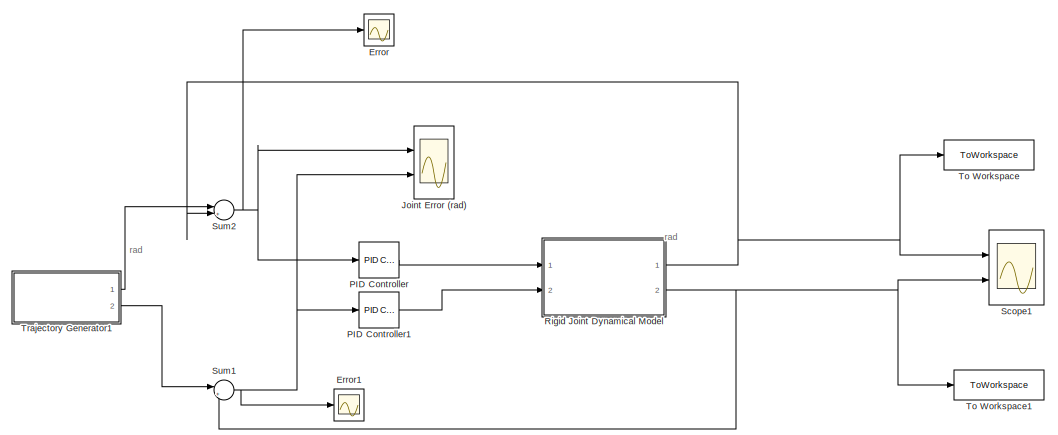
[diagram: root canvas - part 1/2, left side, full height]
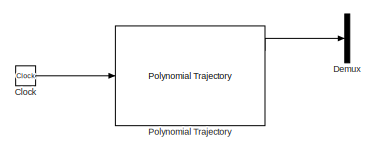
[diagram: root canvas - part 2/2, middle right region]
MODEL slx_6ab3301cea69
KIND model
CONFIG AbsTol = auto
CONFIG EnableMultiTasking = off
CONFIG FixedStep = auto
CONFIG MaxStep = auto
CONFIG MinStep = auto
CONFIG RelTol = 1e-3
CONFIG SampleTimeConstraint = Unconstrained
CONFIG Solver = VariableStepAuto
CONFIG SolverName = VariableStepAuto
CONFIG StartTime = 0.0
CONFIG StopTime = 10
BLOCK [Clock] Clock
  Commented = on
BLOCK [Demux] Demux
  Commented = on
  DisplayOption = bar
  Outputs = 2
  Ports = [1, 2]
BLOCK [Scope] Error
  Floating = off
  NumInputPorts = 1
  Ports = [1]
  ScopeSpecificationString = Simulink.scopes.TimeScopeBlockCfg('CurrentConfiguration', extmgr.ConfigurationSet(extmgr.Configuration('Core','General UI',true,'FigureColor',[0.941176470588235 0.941176470588235 0.941176470588235]),extmgr.Configuration('Core','Source UI',true),extmgr.Configuration('Sources','WiredSimulink',true,'DataLoggingVariableName','ScopeData1','DataLogging',true),extmgr.Configuration('Visuals','Time Domain'...<+1820ch>
BLOCK [Scope] Error1
  Floating = off
  NumInputPorts = 1
  Ports = [1]
  ScopeSpecificationString = Simulink.scopes.TimeScopeBlockCfg('CurrentConfiguration', extmgr.ConfigurationSet(extmgr.Configuration('Core','General UI',true,'FigureColor',[0.941176470588235 0.941176470588235 0.941176470588235]),extmgr.Configuration('Core','Source UI',true),extmgr.Configuration('Sources','WiredSimulink',true,'DataLoggingVariableName','ScopeData2'),extmgr.Configuration('Visuals','Time Domain',true,'SerializedDi...<+2074ch>
BLOCK [Scope] Joint Error (rad)
  Floating = off
  NumInputPorts = 2
  Ports = [2]
  ScopeSpecificationString = Simulink.scopes.TimeScopeBlockCfg('CurrentConfiguration', extmgr.ConfigurationSet(extmgr.Configuration('Core','General UI',true,'FigureColor',[1 1 1]),extmgr.Configuration('Core','Source UI',true),extmgr.Configuration('Sources','WiredSimulink',true),extmgr.Configuration('Visuals','Time Domain',true,'SerializedDisplays',{struct('MinYLimReal','-0.14941','MaxYLimReal','1.36878','YLabelReal','','MinYL...<+1805ch>
BLOCK [Reference] PID Controller  REF=simulink/Continuous/PID Controller
  Ports = [1, 1]
  SourceBlock = simulink/Continuous/PID Controller
  SourceProductBaseCode = SL
  SourceProductName = Simulink
  SourceType = PID 1dof
BLOCK [Reference] PID Controller1  REF=simulink/Continuous/PID Controller
  Ports = [1, 1]
  SourceBlock = simulink/Continuous/PID Controller
  SourceProductBaseCode = SL
  SourceProductName = Simulink
  SourceType = PID 1dof
BLOCK [Reference] Polynomial Trajectory  REF=robotcorelib/Polynomial Trajectory
  Commented = on
  Ports = [1, 3]
  SourceBlock = robotcorelib/Polynomial Trajectory
  SourceProductBaseCode = RO
  SourceProductName = Robotics System Toolbox
  SourceType = robotics.slcore.internal.block.PolyTrajSys
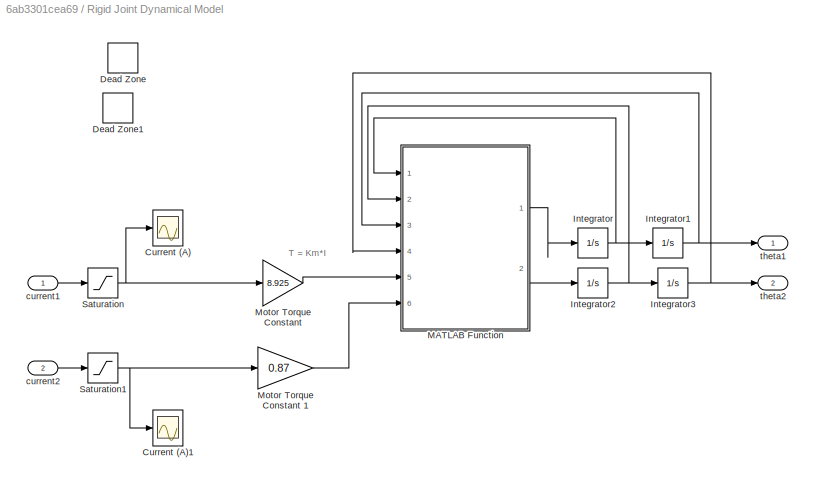
BLOCK [SubSystem] Rigid Joint Dynamical Model
  Ports = [2, 2]
  RequestExecContextInheritance = off
BLOCK [Scope] Rigid Joint Dynamical Model/Current (A)
  Floating = off
  NumInputPorts = 1
  Ports = [1]
  ScopeSpecificationString = Simulink.scopes.TimeScopeBlockCfg('CurrentConfiguration', extmgr.ConfigurationSet(extmgr.Configuration('Core','General UI',true,'FigureColor',[0.831372549019608 0.815686274509804 0.784313725490196]),extmgr.Configuration('Core','Source UI',true),extmgr.Configuration('Sources','WiredSimulink',true,'DataLoggingVariableName','ScopeData3','DataLoggingSaveFormat','Array','DataLoggingDecimation','1','Dat...<+1922ch>
BLOCK [Scope] Rigid Joint Dynamical Model/Current (A)1
  Floating = off
  NumInputPorts = 1
  Ports = [1]
  ScopeSpecificationString = Simulink.scopes.TimeScopeBlockCfg('CurrentConfiguration', extmgr.ConfigurationSet(extmgr.Configuration('Core','General UI',true,'FigureColor',[0.831372549019608 0.815686274509804 0.784313725490196]),extmgr.Configuration('Core','Source UI',true),extmgr.Configuration('Sources','WiredSimulink',true,'DataLoggingVariableName','ScopeData4','DataLoggingSaveFormat','Array','DataLoggingDecimation','1','Dat...<+1911ch>
BLOCK [DeadZone] Rigid Joint Dynamical Model/Dead Zone
  Commented = on
  LowerValue = -0.2
  UpperValue = 0.2
BLOCK [DeadZone] Rigid Joint Dynamical Model/Dead Zone1
  Commented = on
  LowerValue = -0.15
  UpperValue = 0.15
BLOCK [Integrator] Rigid Joint Dynamical Model/Integrator
  Ports = [1, 1]
BLOCK [Integrator] Rigid Joint Dynamical Model/Integrator1
  Ports = [1, 1]
BLOCK [Integrator] Rigid Joint Dynamical Model/Integrator2
  Ports = [1, 1]
BLOCK [Integrator] Rigid Joint Dynamical Model/Integrator3
  Ports = [1, 1]
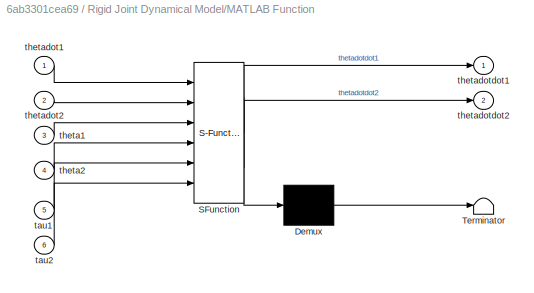
BLOCK [SubSystem] Rigid Joint Dynamical Model/MATLAB Function
  ErrorFcn = Stateflow.Translate.translate
  PermitHierarchicalResolution = ExplicitOnly
  Ports = [6, 2]
  RequestExecContextInheritance = off
  SFBlockType = MATLAB Function
  TreatAsAtomicUnit = on
BLOCK [Demux] Rigid Joint Dynamical Model/MATLAB Function/ Demux 
  Outputs = 1
  Ports = [1, 1]
BLOCK [S-Function] Rigid Joint Dynamical Model/MATLAB Function/ SFunction 
  EnableBusSupport = on
  FunctionName = sf_sfun
  PortCounts = [6 3]
  Ports = [6, 3]
  SFcnIsStateOwnerBlock = off
  SFunctionDeploymentMode = off
  Tag = Stateflow S-Function 2
BLOCK [Terminator] Rigid Joint Dynamical Model/MATLAB Function/ Terminator 
BLOCK [Inport] Rigid Joint Dynamical Model/MATLAB Function/tau1
  IconDisplay = Port number
  Port = 5
BLOCK [Inport] Rigid Joint Dynamical Model/MATLAB Function/tau2
  IconDisplay = Port number
  Port = 6
BLOCK [Inport] Rigid Joint Dynamical Model/MATLAB Function/theta1
  IconDisplay = Port number
  Port = 3
BLOCK [Inport] Rigid Joint Dynamical Model/MATLAB Function/theta2
  IconDisplay = Port number
  Port = 4
BLOCK [Inport] Rigid Joint Dynamical Model/MATLAB Function/thetadot1
  IconDisplay = Port number
BLOCK [Inport] Rigid Joint Dynamical Model/MATLAB Function/thetadot2
  IconDisplay = Port number
  Port = 2
BLOCK [Outport] Rigid Joint Dynamical Model/MATLAB Function/thetadotdot1
  IconDisplay = Port number
BLOCK [Outport] Rigid Joint Dynamical Model/MATLAB Function/thetadotdot2
  IconDisplay = Port number
  Port = 2
BLOCK [Gain] Rigid Joint Dynamical Model/Motor Torque Constant 
  Gain = 8.925
  OutDataTypeStr = Inherit: Inherit via internal rule
  ParamDataTypeStr = Inherit: Inherit via internal rule
  SaturateOnIntegerOverflow = off
BLOCK [Gain] Rigid Joint Dynamical Model/Motor Torque Constant 1
  Gain = 0.87
  OutDataTypeStr = Inherit: Inherit via internal rule
  ParamDataTypeStr = Inherit: Inherit via internal rule
  SaturateOnIntegerOverflow = off
BLOCK [Saturate] Rigid Joint Dynamical Model/Saturation
  InputPortMap = u0
  LowerLimit = -1
  Ports = [1, 1]
  UpperLimit = 1
BLOCK [Saturate] Rigid Joint Dynamical Model/Saturation1
  InputPortMap = u0
  Ports = [1, 1]
BLOCK [Inport] Rigid Joint Dynamical Model/current1
  IconDisplay = Port number
BLOCK [Inport] Rigid Joint Dynamical Model/current2 
  IconDisplay = Port number
  Port = 2
BLOCK [Outport] Rigid Joint Dynamical Model/theta1
  IconDisplay = Port number
BLOCK [Outport] Rigid Joint Dynamical Model/theta2
  IconDisplay = Port number
  Port = 2
BLOCK [Scope] Scope1
  Floating = off
  NumInputPorts = 2
  Ports = [2]
  ScopeSpecificationString = Simulink.scopes.TimeScopeBlockCfg('CurrentConfiguration', extmgr.ConfigurationSet(extmgr.Configuration('Core','General UI',true,'FigureColor',[1 1 1]),extmgr.Configuration('Core','Source UI',true),extmgr.Configuration('Sources','WiredSimulink',true,'DataLoggingVariableName','ScopeData1'),extmgr.Configuration('Visuals','Time Domain',true,'SerializedDisplays',{struct('MinYLimReal','-0.55588','MaxYLi...<+1792ch>
BLOCK [Sum] Sum1
  IconShape = round
  InputSameDT = off
  Inputs = |+-
  OutDataTypeStr = Inherit: Inherit via internal rule
  Ports = [2, 1]
  SaturateOnIntegerOverflow = off
BLOCK [Sum] Sum2
  IconShape = round
  InputSameDT = off
  Inputs = |+-
  OutDataTypeStr = Inherit: Inherit via internal rule
  Ports = [2, 1]
  SaturateOnIntegerOverflow = off
BLOCK [ToWorkspace] To Workspace
  Commented = on
  FixptAsFi = on
  MaxDataPoints = inf
  Ports = [1]
  SampleTime = -1
  SaveFormat = Timeseries
  VariableName = stage1
BLOCK [ToWorkspace] To Workspace1
  Commented = on
  FixptAsFi = on
  MaxDataPoints = inf
  Ports = [1]
  SampleTime = -1
  SaveFormat = Timeseries
  VariableName = stage2
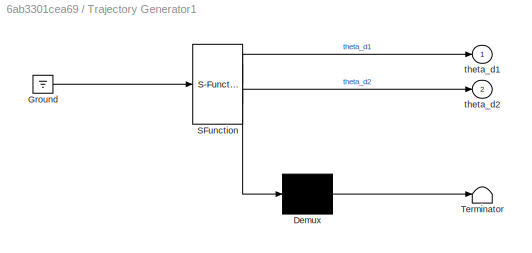
BLOCK [SubSystem] Trajectory Generator1
  ErrorFcn = Stateflow.Translate.translate
  PermitHierarchicalResolution = ExplicitOnly
  Ports = [0, 2]
  RequestExecContextInheritance = off
  SFBlockType = MATLAB Function
  TreatAsAtomicUnit = on
BLOCK [Demux] Trajectory Generator1/ Demux 
  Outputs = 1
  Ports = [1, 1]
BLOCK [Ground] Trajectory Generator1/ Ground 
BLOCK [S-Function] Trajectory Generator1/ SFunction 
  EnableBusSupport = on
  FunctionName = sf_sfun
  PortCounts = [1 3]
  Ports = [1, 3]
  SFcnIsStateOwnerBlock = off
  SFunctionDeploymentMode = off
  Tag = Stateflow S-Function 1
BLOCK [Terminator] Trajectory Generator1/ Terminator 
BLOCK [Outport] Trajectory Generator1/theta_d1
  IconDisplay = Port number
BLOCK [Outport] Trajectory Generator1/theta_d2
  IconDisplay = Port number
  Port = 2
ANNOTATION (root): rad
ANNOTATION Rigid Joint Dynamical Model: T = Km*I
LINE Clock:1 -> Polynomial Trajectory:1
LINE PID Controller1:1 -> Rigid Joint Dynamical Model:2
LINE PID Controller:1 -> Rigid Joint Dynamical Model:1
LINE Polynomial Trajectory:1 -> Demux:1
NET Rigid Joint Dynamical Model/Integrator1:1 -> Rigid Joint Dynamical Model/MATLAB Function:3, Rigid Joint Dynamical Model/theta1:1
NET Rigid Joint Dynamical Model/Integrator2:1 -> Rigid Joint Dynamical Model/Integrator3:1, Rigid Joint Dynamical Model/MATLAB Function:2
NET Rigid Joint Dynamical Model/Integrator3:1 -> Rigid Joint Dynamical Model/MATLAB Function:4, Rigid Joint Dynamical Model/theta2:1
NET Rigid Joint Dynamical Model/Integrator:1 -> Rigid Joint Dynamical Model/Integrator1:1, Rigid Joint Dynamical Model/MATLAB Function:1
LINE Rigid Joint Dynamical Model/MATLAB Function:1 -> Rigid Joint Dynamical Model/Integrator:1
LINE Rigid Joint Dynamical Model/MATLAB Function:2 -> Rigid Joint Dynamical Model/Integrator2:1
LINE Rigid Joint Dynamical Model/Motor Torque Constant 1:1 -> Rigid Joint Dynamical Model/MATLAB Function:6
LINE Rigid Joint Dynamical Model/Motor Torque Constant :1 -> Rigid Joint Dynamical Model/MATLAB Function:5
NET Rigid Joint Dynamical Model/Saturation1:1 -> Rigid Joint Dynamical Model/Current (A)1:1, Rigid Joint Dynamical Model/Motor Torque Constant 1:1
NET Rigid Joint Dynamical Model/Saturation:1 -> Rigid Joint Dynamical Model/Current (A):1, Rigid Joint Dynamical Model/Motor Torque Constant :1
LINE Rigid Joint Dynamical Model/current1:1 -> Rigid Joint Dynamical Model/Saturation:1
LINE Rigid Joint Dynamical Model/current2 :1 -> Rigid Joint Dynamical Model/Saturation1:1
NET Rigid Joint Dynamical Model:1 -> Scope1:1, Sum2:2, To Workspace:1
NET Rigid Joint Dynamical Model:2 -> Scope1:2, Sum1:2, To Workspace1:1
NET Sum1:1 -> Error1:1, Joint Error (rad):2, PID Controller1:1
NET Sum2:1 -> Error:1, Joint Error (rad):1, PID Controller:1
LINE Trajectory Generator1:1 -> Sum2:1
LINE Trajectory Generator1:2 -> Sum1:1
note: NET lines group one-source signal fan-out (src -> all destinations, sorted); 1:1 wires keep LINE
CHART Trajectory Generator1 states=1 transitions=1
  STATE_LABEL 'eML_blk_kernel()'
  STATE_LABEL 'SCRIPT:\nfunction [theta_d1,theta_d2]  = fcn\ntheta_start1 = 0;\ntheta_start2 = 0;\ntheta_end1 = pi/4;\ntheta_end2 = pi/4;\ntheta_d1 = theta_start1 + (theta_end1-theta_start1);\ntheta_d2 = theta_start2 + (theta_end2-theta_start2);\n'
CHART Rigid Joint Dynamical Model/MATLAB Function states=1 transitions=1
  STATE_LABEL 'eML_blk_kernel()'
  STATE_LABEL 'SCRIPT:\nfunction [thetadotdot1,thetadotdot2] = fcn(thetadot1,thetadot2,theta1,theta2,tau1,tau2)\n%y is thetadotdot\ntau = [tau1;tau2];\n%Veltman Thesis Values\n% m1 = 0.5; \n% m2 = 1;\n% L1 = 0.343;\n% L2 = 0.267;\n% Lc1 = 0.2;\n% Lc2 = 0.25;\n% I1 = 0.01;\n% I2 = 0.01;\n% B1 = 0.070364;\n% B2 = 0.028211;\n\n%Electrical School values\nm1 =  1.51 ; \nm2 = 0.87326;\nL1 = 0.343;\nL2 = 0.267;\nLc1 = 0.1590;\nLc2 = 0.0550;...<+591ch>'
